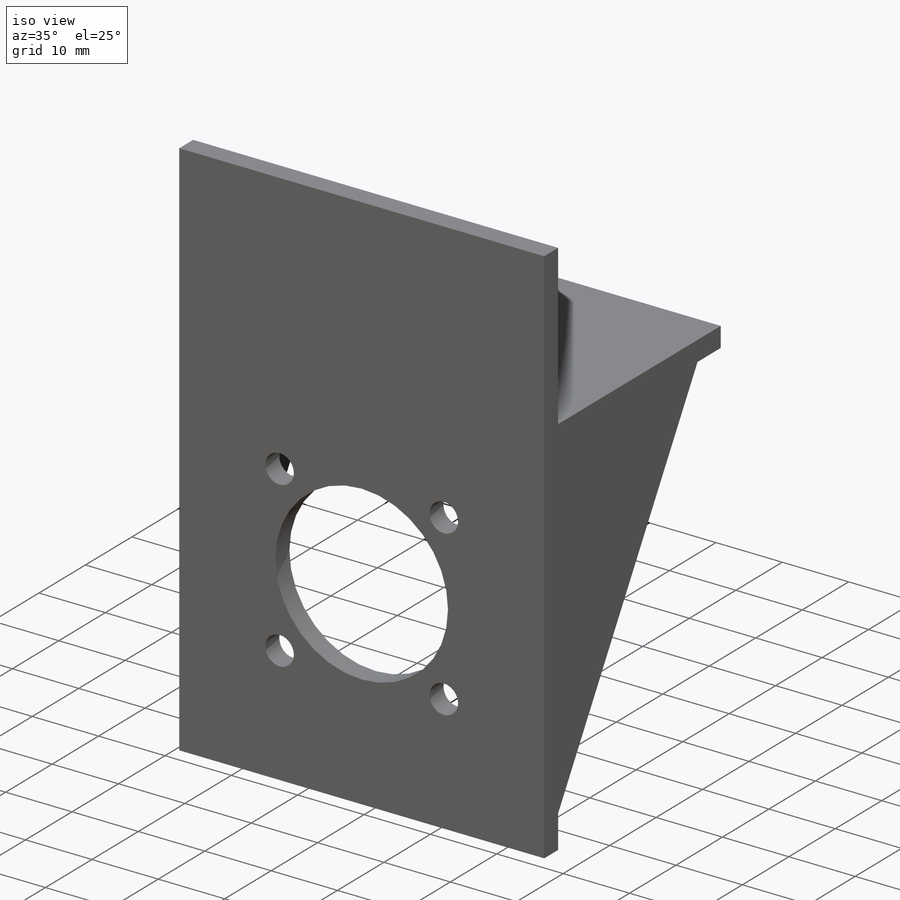
[diagram: iso view]
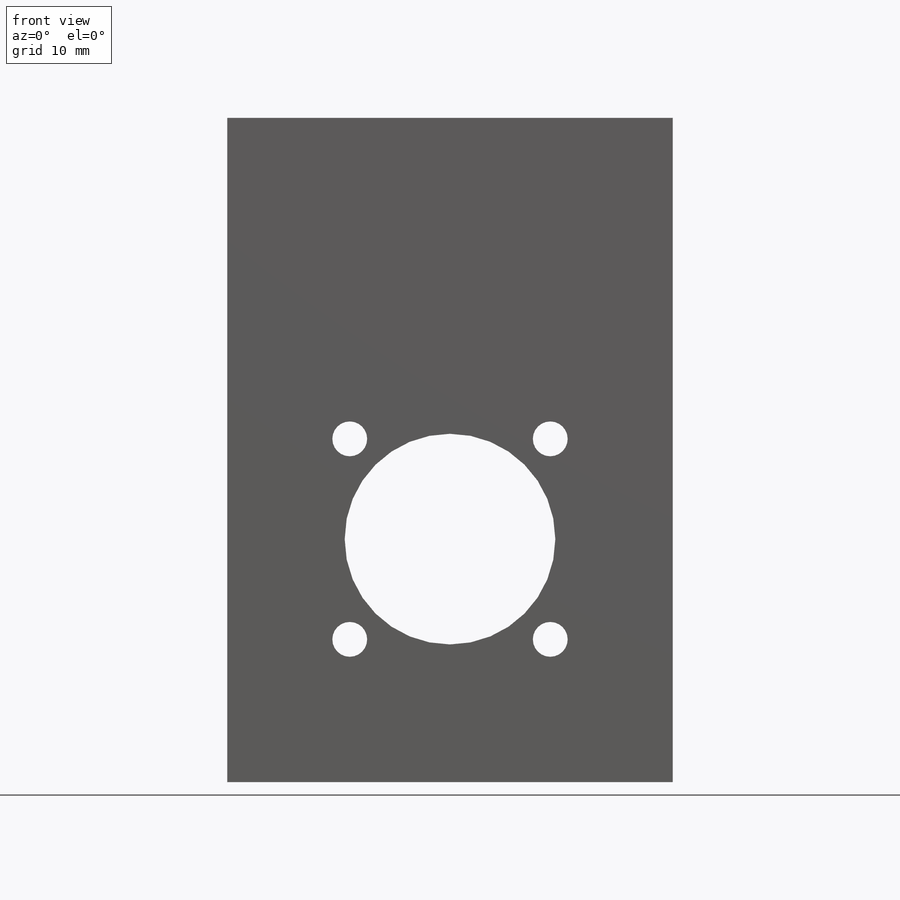
[diagram: front view]
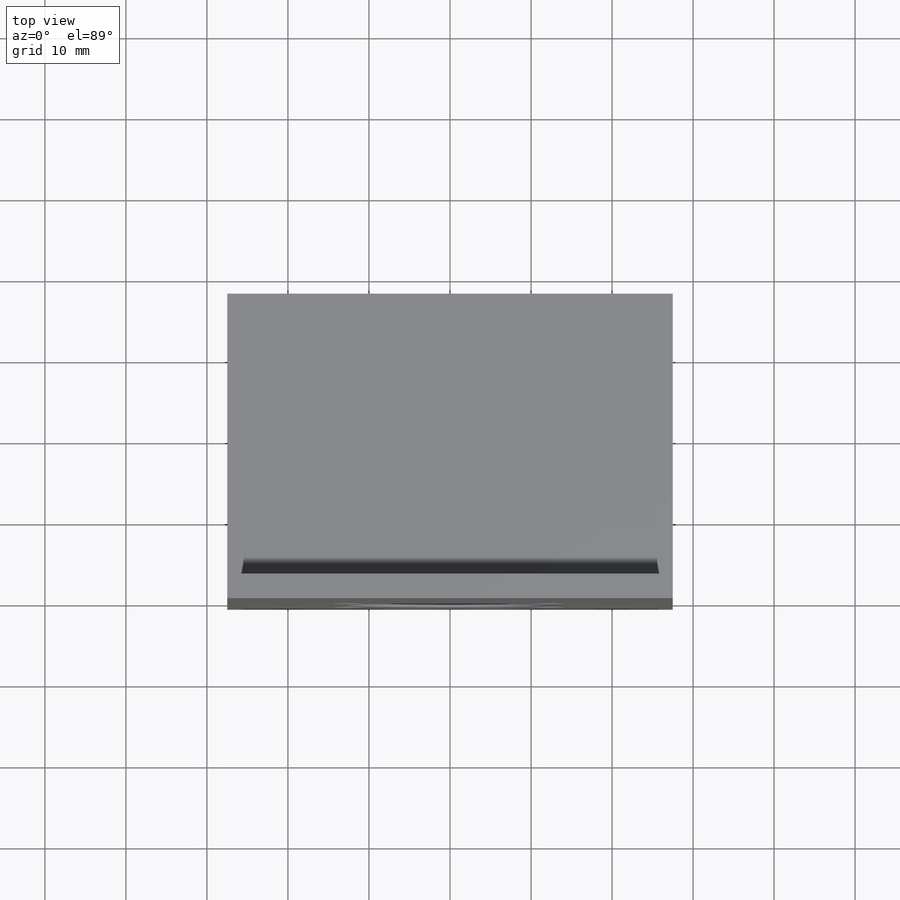
[diagram: top view]
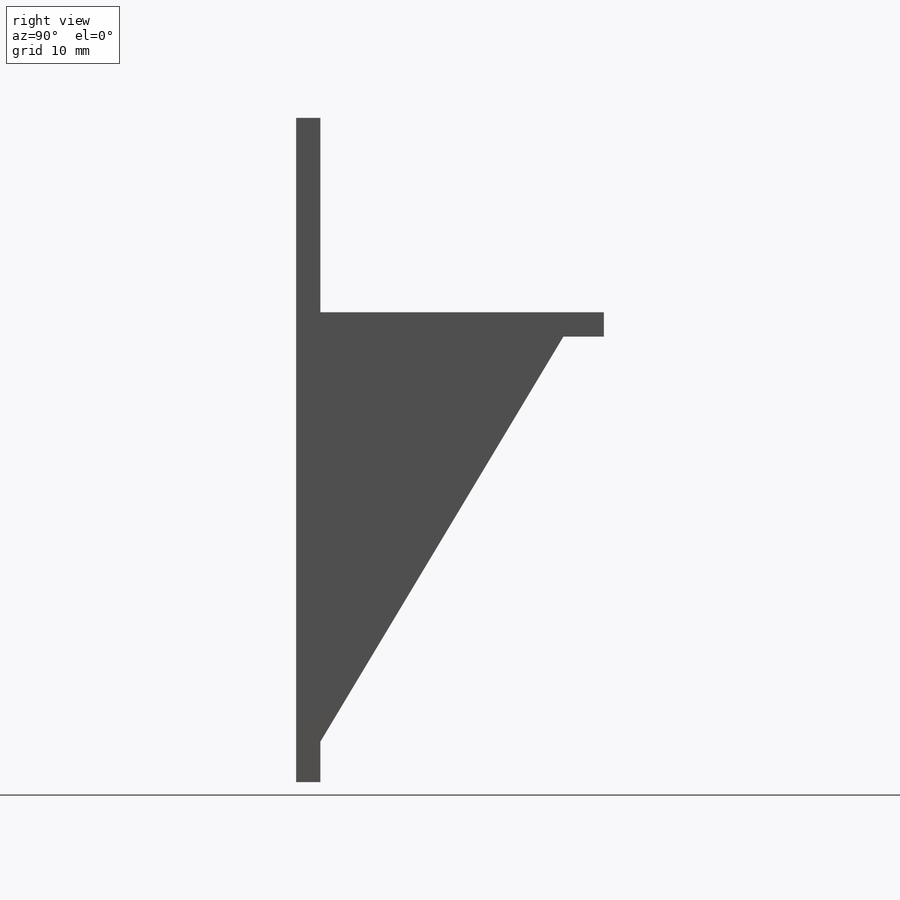
[diagram: right view]
SOLIDWORKS PART (.sldprt)
format: sldprt  version: not decoded by parser v0  size: 190,976 bytes
history: native  units: mm
features: sketch x5, extrude x4, material x1, cut_extrude x1 (+12 scaffold rows collapsed)
feature tree (23):
  scaffold x12  (default folders/planes/origin — collapsed)
  material  "Material <not specified>"
  sketch  "Sketch1"  dims[D1=55.0mm D2=35.0mm]
  extrude  "Boss-Extrude1"  Depth=3mm
  sketch  "Sketch2"  dims[D1=24.0mm D2=55.0mm]
  extrude  "Boss-Extrude2"  Depth=3mm
  sketch  "Sketch3"  dims[D1=50.0mm D2=30.0mm]
  extrude  "Boss-Extrude3"  Depth=3mm
  sketch  "Sketch4"
  extrude  "Boss-Extrude4"  Depth=3mm
  sketch  "Sketch5"  dims[c1.D2=26.0mm c1.D3=35.0mm c1.D4=4.3mm c1.D5=4.3mm c1.D1=25.0mm c2.D4=25.0mm c3.D4=45.0deg c3.D6=4.0]
  cut_extrude  "Cut-Extrude1"  Depth=3mm
decode coverage: 9 of 10 modeling features carry decoded parameters
note: suppression state not decoded; provenance and decode notes live in map.json
